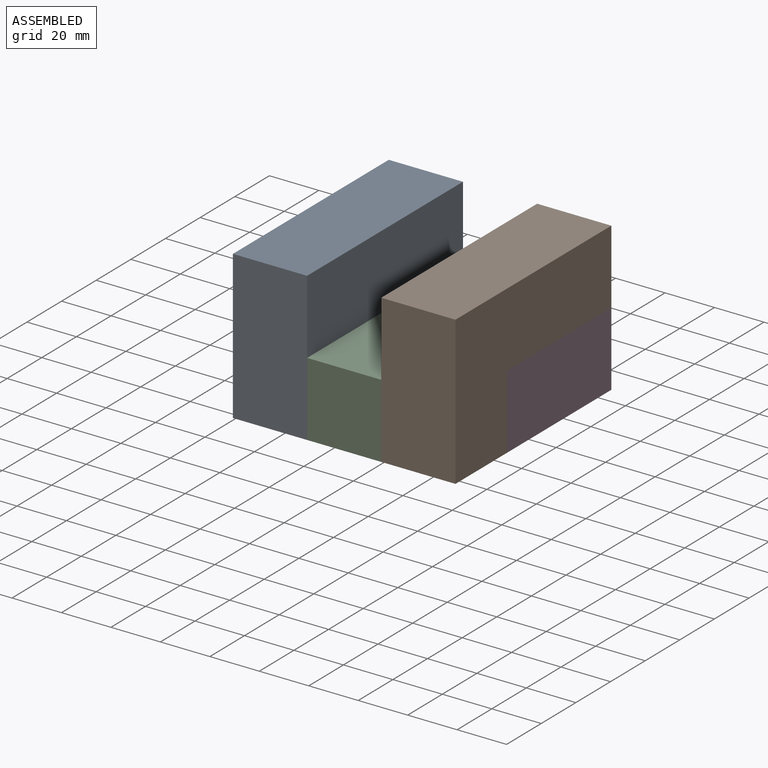
[diagram: assembled view]
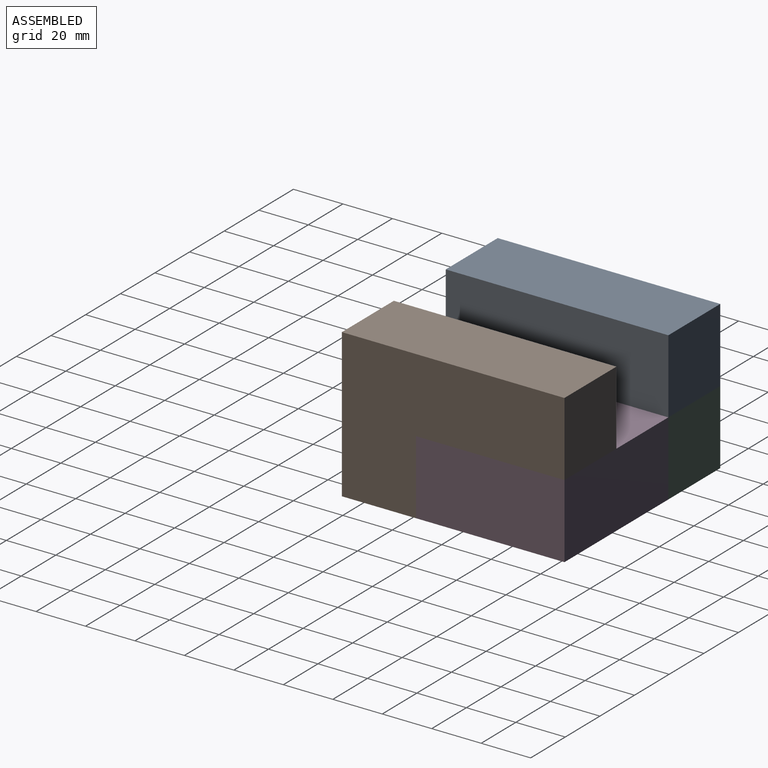
[diagram: assembled view, second angle]
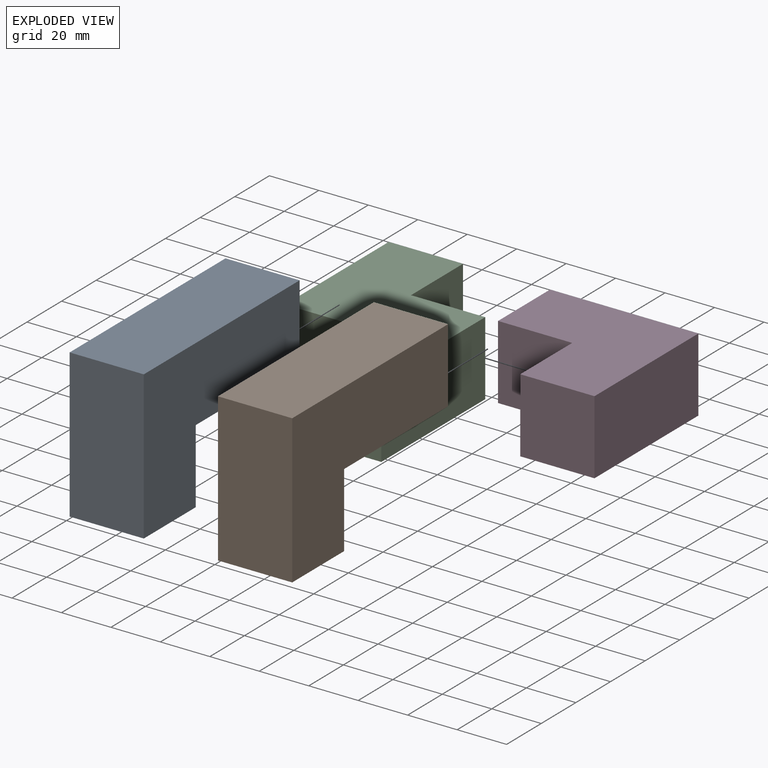
[diagram: exploded view]
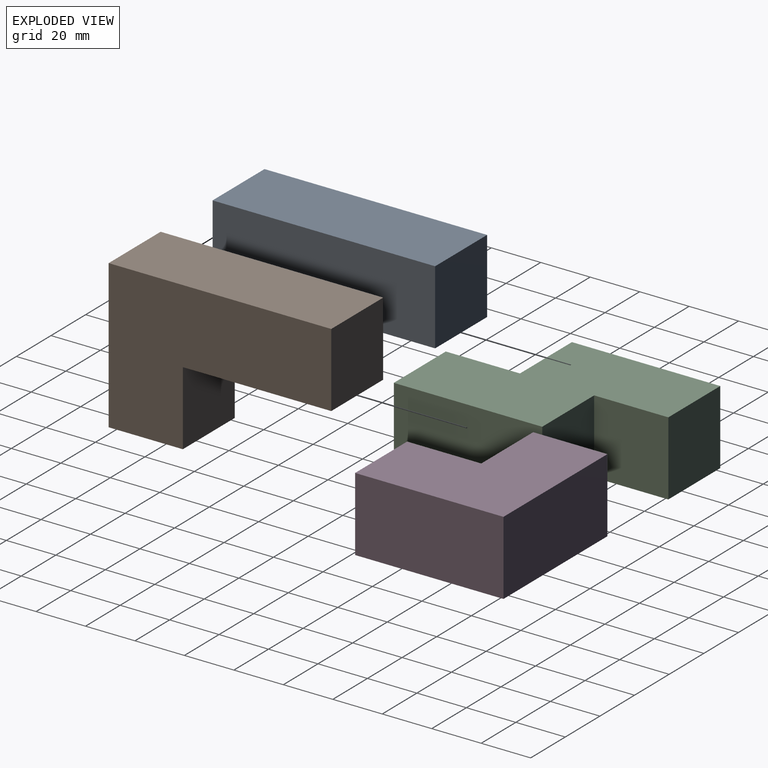
[diagram: exploded view, second angle]
ASSEMBLY  parts=4 mates=3
PART A: 8 faces, bbox 30x90x60 mm
  f0: plane 30x30mm, normal (0,1,0), area 900mm2, adj f1,f3,f5,f6
  f1: plane 90x60mm, normal (-1,0,0), area 3600mm2, adj f0,f2,f4,f5,f6,f7
  f2: plane 60x30mm, normal (0,-1,0), area 1800mm2, adj f1,f3,f4,f5
  f3: plane 90x60mm, normal (1,0,0), area 3600mm2, adj f0,f2,f4,f5,f6,f7
  f4: plane 90x30mm, normal (0,0,1), area 2700mm2, adj f1,f2,f3,f7
  f5: plane 30x30mm, normal (0,0,-1), area 900mm2, adj f0,f1,f2,f3
  f6: plane 60x30mm, normal (0,0,-1), area 1800mm2, adj f0,f1,f3,f7
  f7: plane 30x30mm, normal (0,1,0), area 900mm2, adj f1,f3,f4,f6
PART B: 8 faces, bbox 30x90x60 mm
  f0: plane 90x60mm, normal (-1,0,0), area 3600mm2, adj f1,f3,f4,f5,f6,f7
  f1: plane 60x30mm, normal (0,-1,0), area 1800mm2, adj f0,f2,f4,f5
  f2: plane 90x60mm, normal (1,0,0), area 3600mm2, adj f1,f3,f4,f5,f6,f7
  f3: plane 30x30mm, normal (0,1,0), area 900mm2, adj f0,f2,f5,f6
  f4: plane 90x30mm, normal (0,0,1), area 2700mm2, adj f0,f1,f2,f7
  f5: plane 30x30mm, normal (0,0,-1), area 900mm2, adj f0,f1,f2,f3
  f6: plane 60x30mm, normal (0,0,-1), area 1800mm2, adj f0,f2,f3,f7
  f7: plane 30x30mm, normal (0,1,0), area 900mm2, adj f0,f2,f4,f6
PART C: 10 faces, bbox 60x90x30 mm
  f0: plane 30x30mm, normal (1,0,0), area 900mm2, adj f1,f3,f4,f6
  f1: plane 30x30mm, normal (0,1,0), area 900mm2, adj f0,f2,f3,f4
  f2: plane 60x30mm, normal (-1,0,0), area 1800mm2, adj f1,f3,f4,f5
  f3: plane 90x60mm, normal (0,0,1), area 3600mm2, adj f0,f1,f2,f5,f6,f7,f8,f9
  f4: plane 90x60mm, normal (0,0,-1), area 3600mm2, adj f0,f1,f2,f5,f6,f7,f8,f9
  f5: plane 30x30mm, normal (0,-1,0), area 900mm2, adj f2,f3,f4,f8
  f6: plane 30x30mm, normal (0,1,0), area 900mm2, adj f0,f3,f4,f7
  f7: plane 60x30mm, normal (1,0,0), area 1800mm2, adj f3,f4,f6,f9
  f8: plane 30x30mm, normal (-1,0,0), area 900mm2, adj f3,f4,f5,f9
  f9: plane 30x30mm, normal (0,-1,0), area 900mm2, adj f3,f4,f7,f8
PART D: 8 faces, bbox 60x60x30 mm
  f0: plane 60x60mm, normal (0,0,1), area 2700mm2, adj f2,f3,f4,f5,f6,f7
  f1: plane 60x60mm, normal (0,0,-1), area 2700mm2, adj f2,f3,f4,f5,f6,f7
  f2: plane 60x30mm, normal (1,0,0), area 1800mm2, adj f0,f1,f5,f7
  f3: plane 30x30mm, normal (-1,0,0), area 900mm2, adj f0,f1,f4,f7
  f4: plane 30x30mm, normal (0,-1,0), area 900mm2, adj f0,f1,f3,f6
  f5: plane 60x30mm, normal (0,1,0), area 1800mm2, adj f0,f1,f2,f6
  f6: plane 30x30mm, normal (-1,0,0), area 900mm2, adj f0,f1,f4,f5
  f7: plane 30x30mm, normal (0,-1,0), area 900mm2, adj f0,f1,f2,f3
PLACE A t=(6.64,-1.2,-9.56)mm
PLACE B t=(6.64,-1.2,-9.56)mm
PLACE C t=(6.64,-1.2,-9.56)mm
PLACE D t=(6.64,-1.2,-9.56)mm
MATE fastened B.f3 <-> D.f7  axis (0,1,0) through (36.64,-16.2,5.44)mm
MATE fastened A.f0 <-> C.f5  axis (0,1,0) through (-23.36,-16.2,5.44)mm
MATE fastened D.f6 <-> C.f0  axis (-1,0,0) through (-8.36,28.8,5.44)mm
